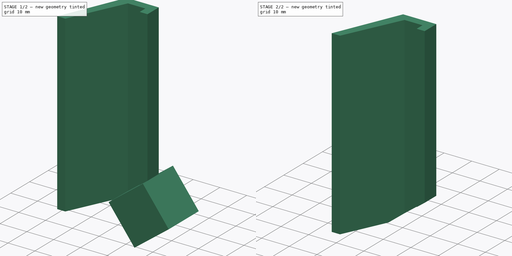
[diagram: build sequence overview — one tinted view per stage of 2, left to right]
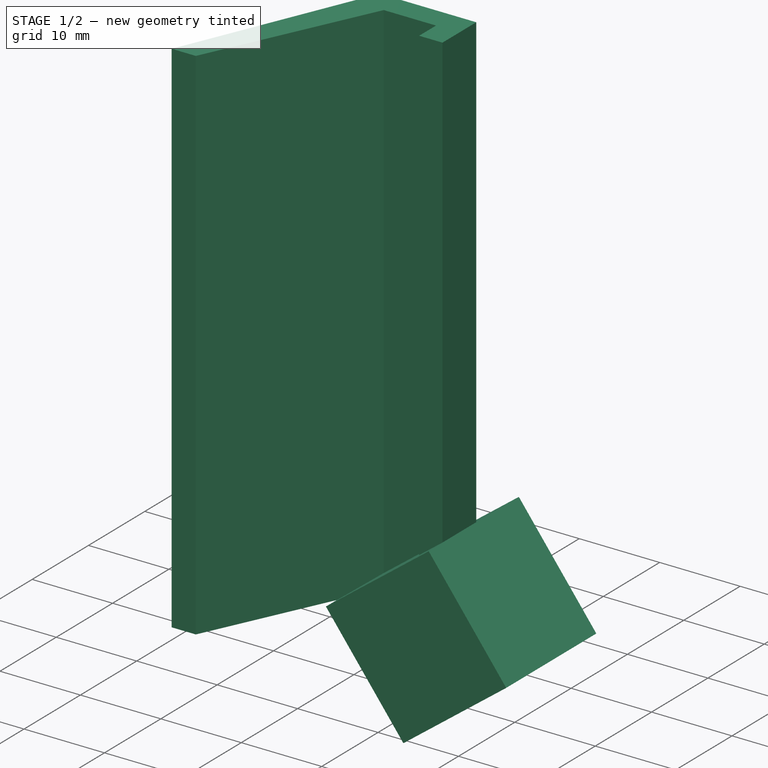
[diagram: stage 1 of 2 — iso view after this stage's code; geometry added in this stage tinted green]
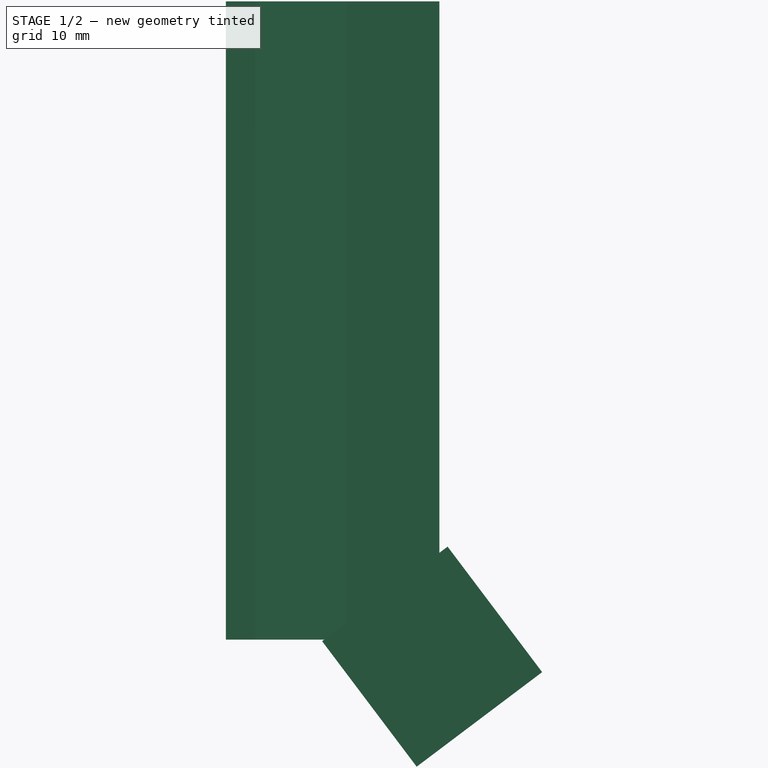
[diagram: stage 1 of 2 — front view after this stage's code; geometry added in this stage tinted green]
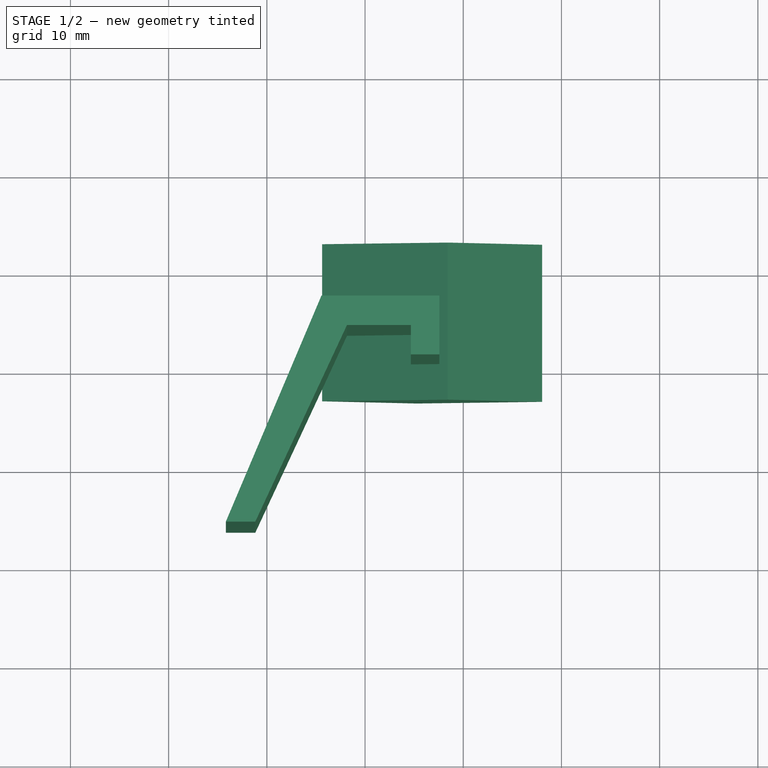
[diagram: stage 1 of 2 — top view after this stage's code; geometry added in this stage tinted green]
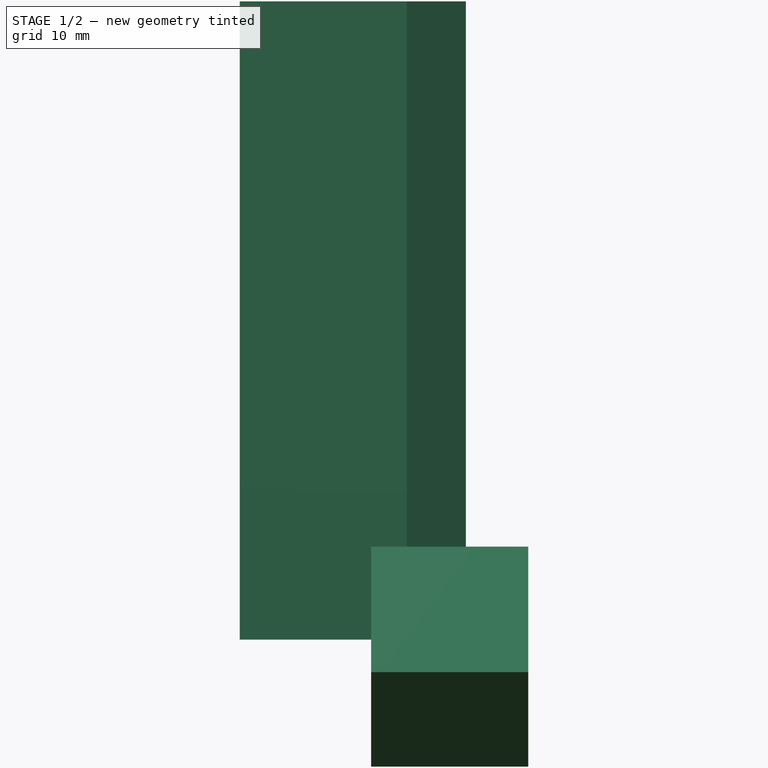
[diagram: stage 1 of 2 — right view after this stage's code; geometry added in this stage tinted green]
FCSTD DOCUMENT  (FreeCAD 0.18R16110 (Git))
Label: trimoto_gardevase
License: All rights reserved
LicenseURL: http://en.wikipedia.org/wiki/All_rights_reserved
objects: Sketcher::SketchObject×1, PartDesign::Pad×1, PartDesign::Body×1, Part::Box×1, Part::Cut×1
note: 6 computed .brp shape members not serialized (recipe doc carries the construction recipe); baked Part::Feature solids carry a one-line shape summary decoded from their .brp

FEATURE [Sketcher::SketchObject] Sketch
  MapMode = 5
  Support = -> [XY_Plane]
  sketch-geometry (8):
    g0: LineSegment StartX=-14.1746 StartY=-16.3852 StartZ=0 EndX=-11.1746 EndY=-16.3852 EndZ=0
    g1: LineSegment StartX=-11.1746 StartY=-16.3852 StartZ=0 EndX=-1.83659 EndY=3.64026 EndZ=0
    g2: LineSegment StartX=4.66341 StartY=3.64026 StartZ=0 EndX=4.66341 EndY=0.64026 EndZ=0
    g3: LineSegment StartX=4.66341 StartY=0.64026 StartZ=0 EndX=7.56341 EndY=0.64026 EndZ=0
    g4: LineSegment StartX=7.56341 StartY=0.64026 StartZ=0 EndX=7.56341 EndY=6.64026 EndZ=0
    g5: LineSegment StartX=7.56341 StartY=6.64026 StartZ=0 EndX=-4.43659 EndY=6.64026 EndZ=0
    g6: LineSegment StartX=-4.43659 StartY=6.64026 StartZ=0 EndX=-14.1746 EndY=-16.3852 EndZ=0
    g7: LineSegment StartX=4.66341 StartY=3.64026 StartZ=0 EndX=-1.83659 EndY=3.64026 EndZ=0
  constraints (22):
    c: Horizontal(g0)
    c: Coincident(g0,g1)
    c: Vertical(g2)
    c: Coincident(g2,g3)
    c: Horizontal(g3)
    c: Coincident(g3,g4)
    c: Vertical(g4)
    c: Coincident(g4,g5)
    c: Horizontal(g5)
    c: Coincident(g5,g6)
    c: Coincident(g6,g0)
    c: DistanceX(g0,g0) = 3
    c: DistanceX(g3,g3) = 2.9
    c: DistanceY(g4,g4) = 6
    c: DistanceX(g5,g5) = 12
    c: DistanceX(g1,g2) = 6.5
    c: Distance(g6) = 25
    c: DistanceY(g2,g2) = 3
    c: Coincident(g2,g7)
    c: Horizontal(g7)
    c: Coincident(g7,g1)
    c: Angle(g1,g7) = 2.00713
FEATURE [PartDesign::Pad] Pad
  Length = 65
  Length2 = 100
  Profile = -> Sketch
  Type = 0
FEATURE [PartDesign::Body] Body
  Group = -> [Sketch,Pad]
  Origin = -> Origin
  Tip = -> Pad
FEATURE [Part::Box] Box  label="Cube"
  AttacherType = Attacher::AttachEngine3D
  Height = 16
  Length = 16
  Placement = pos=(-4.37266,-3,-0.157974) rot=(0,-1,0;5.35816rad)
  Width = 16
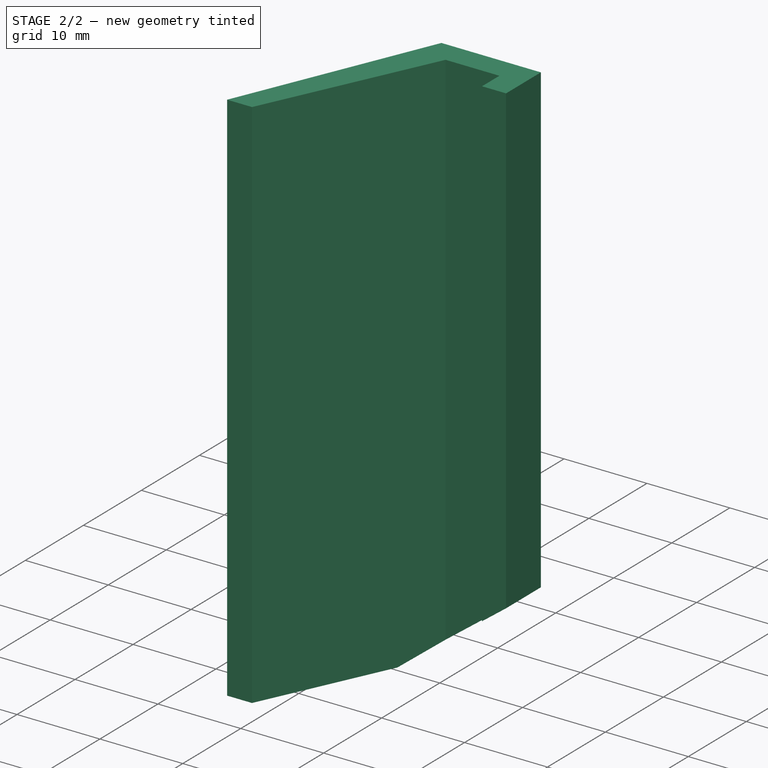
[diagram: stage 2 of 2 — iso view after this stage's code; geometry added in this stage tinted green]
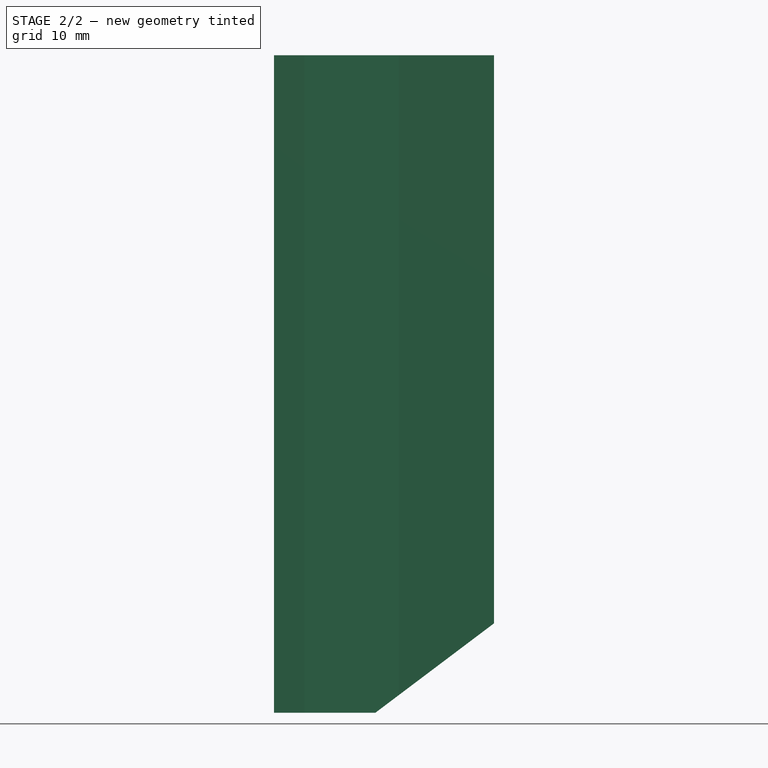
[diagram: stage 2 of 2 — front view after this stage's code; geometry added in this stage tinted green]
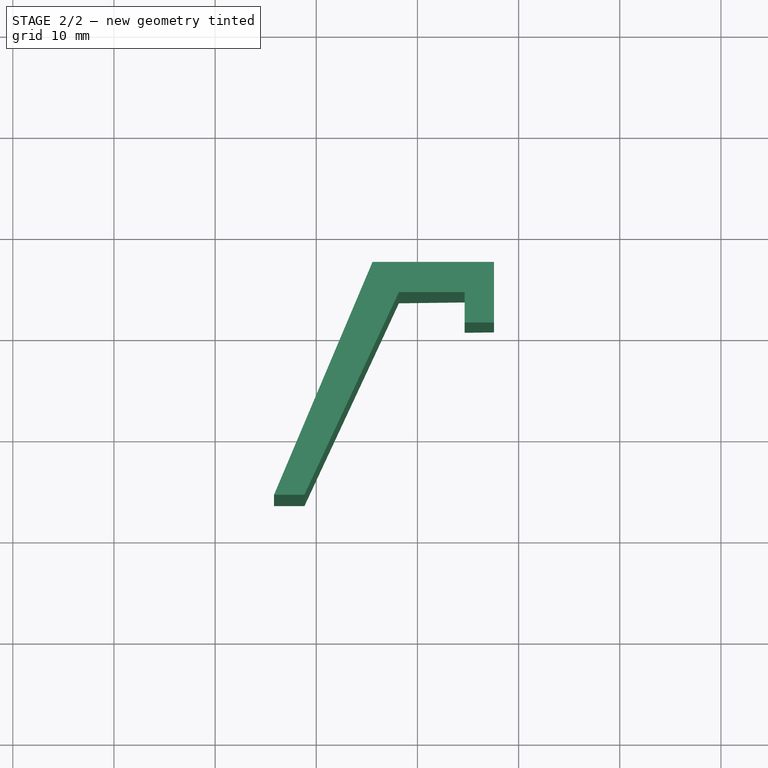
[diagram: stage 2 of 2 — top view after this stage's code; geometry added in this stage tinted green]
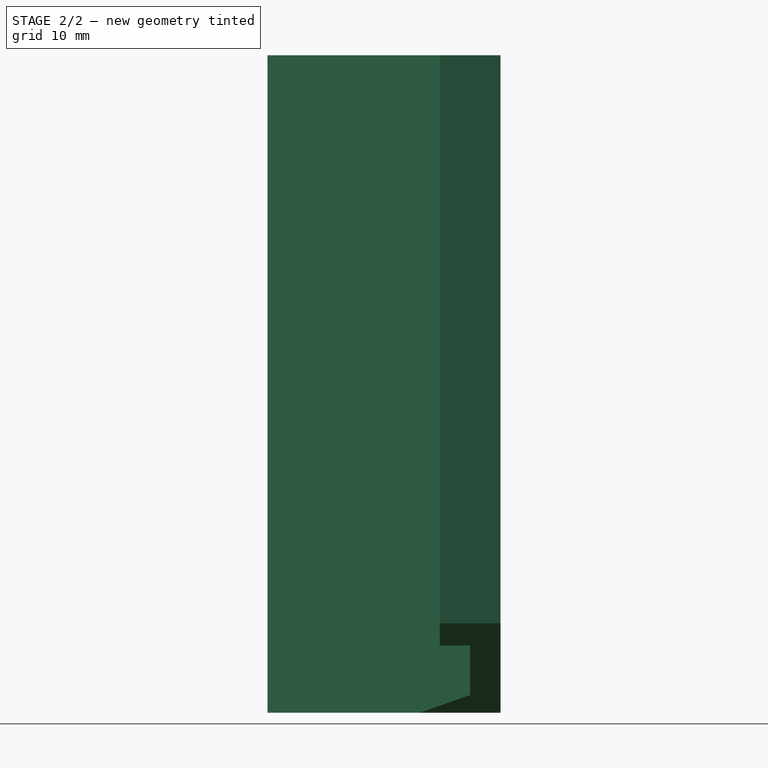
[diagram: stage 2 of 2 — right view after this stage's code; geometry added in this stage tinted green]
FEATURE [Part::Cut] Cut
  Base = -> Pad
  Tool = -> Box
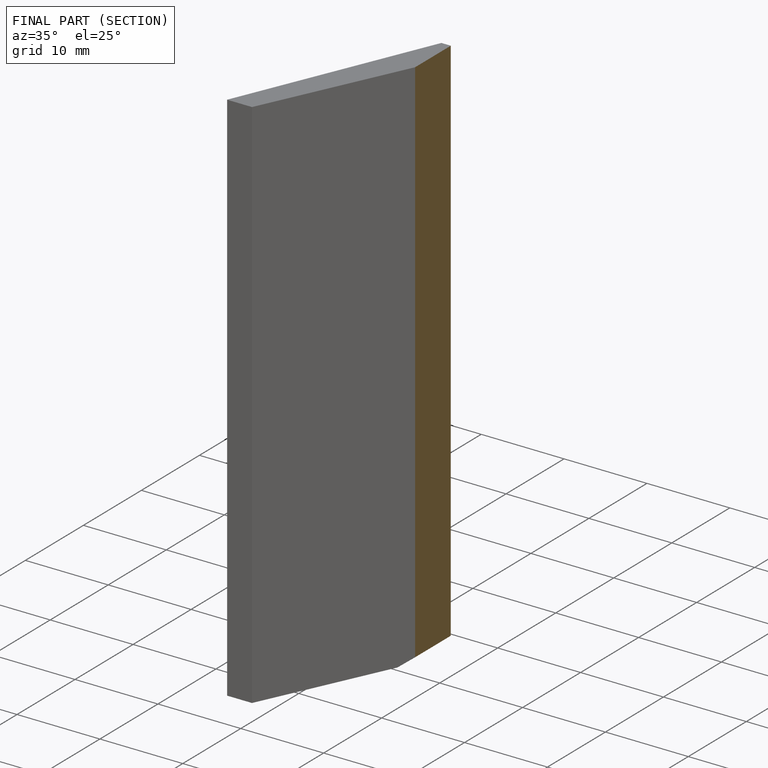
[diagram: finished part — half-section view (interior)]
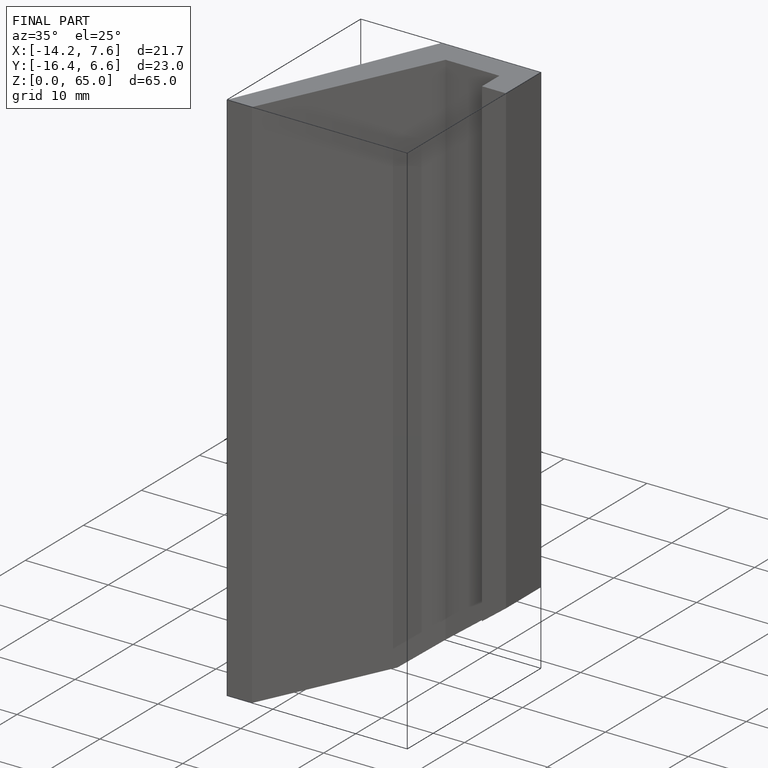
[diagram: finished part — iso view with bounding-box wireframe]
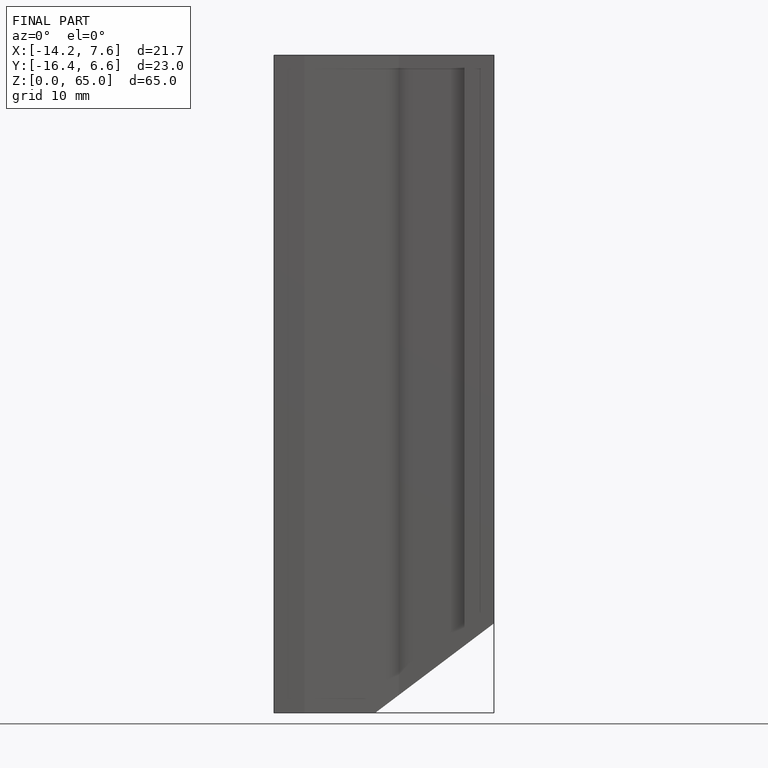
[diagram: finished part — front view with bounding-box wireframe]
